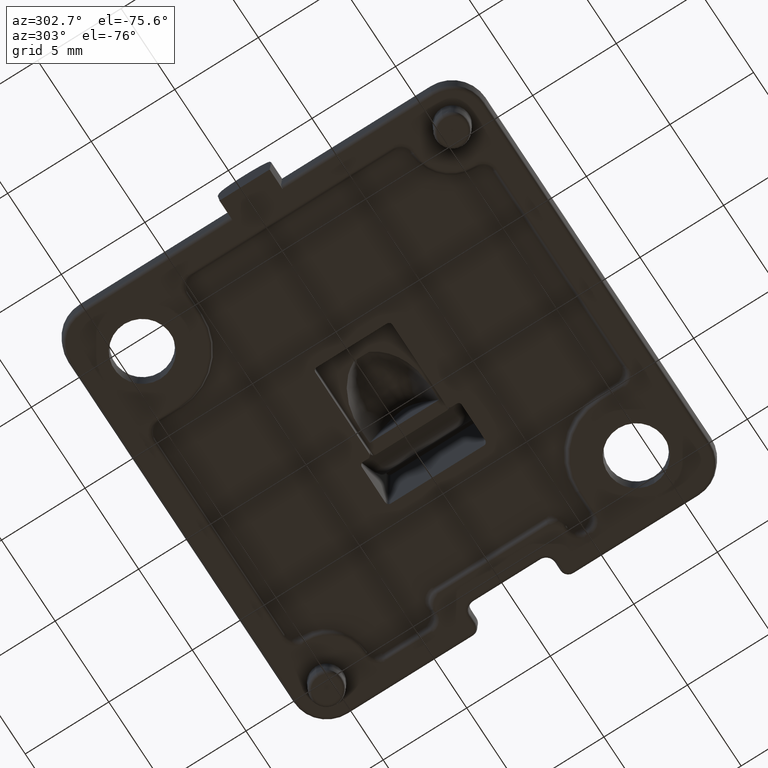
[diagram: clean part render]
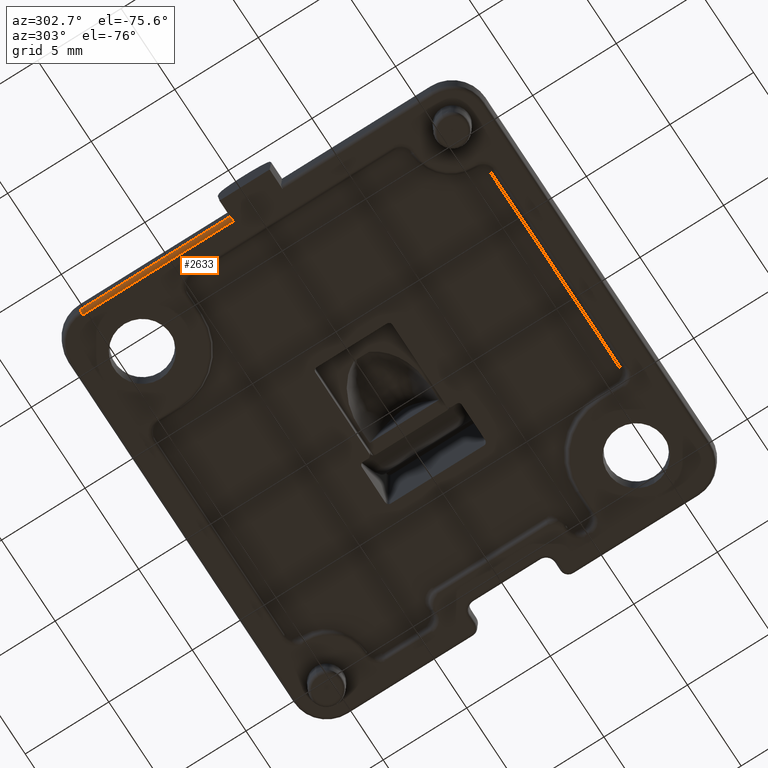
[diagram: same view with one face highlighted and labeled with its STEP entity id]
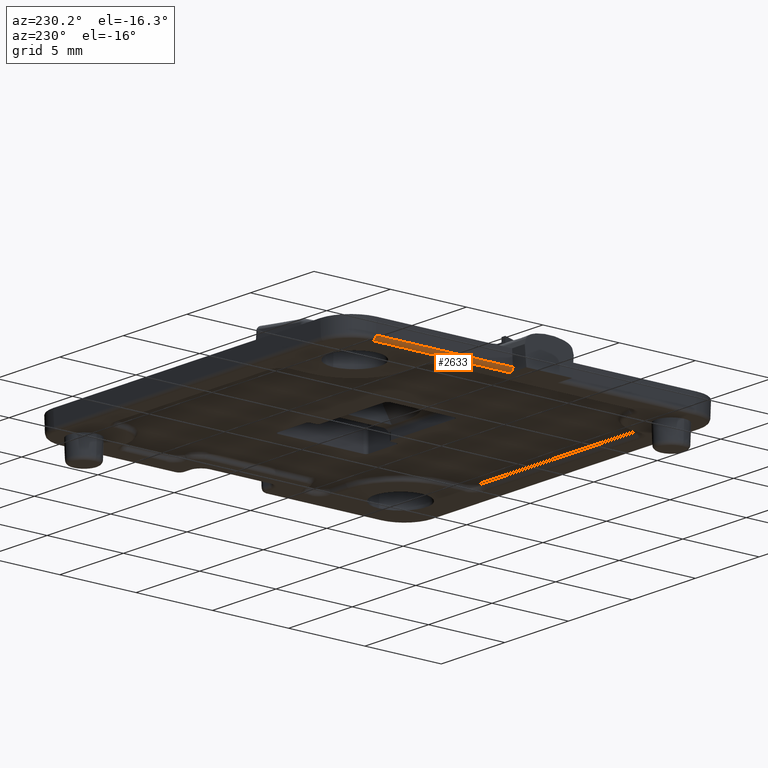
[diagram: same view with one face highlighted and labeled with its STEP entity id]
A machine part, auxiliary view. The second image highlights one B-rep face of the part: STEP entity #2633.
A second angle (auxiliary view) of the same face is appended — the face is thin or edge-on in the first view.
In plain terms, the highlighted cylindrical surface (edge-blend (fillet) strip) has radius 0.25 mm, axis along (-0, 1, 0).
Its self-contained STEP definition (entity closure, byte-faithful):
#91 = DIRECTION ( 'NONE',  ( 8.260587980841940000E-017, -1.000000000000000000, -1.200071625483515100E-033 ) ) ;
#319 = VERTEX_POINT ( 'NONE', #2352 ) ;
#773 = EDGE_CURVE ( 'NONE', #7667, #319, #3754, .T. ) ;
#805 = CIRCLE ( 'NONE', #2545, 0.2500000000000000000 ) ;
#1375 = DIRECTION ( 'NONE',  ( -8.260587980841941200E-017, 1.000000000000000000, 0.0000000000000000000 ) ) ;
#1663 = EDGE_LOOP ( 'NONE', ( #2472, #2549, #5921, #6391 ) ) ;
#1700 = CYLINDRICAL_SURFACE ( 'NONE', #3645, 0.2500000000000002200 ) ;
#2111 = VECTOR ( 'NONE', #4198, 1000.000000000000000 ) ;
#2209 = VERTEX_POINT ( 'NONE', #2726 ) ;
#2352 = CARTESIAN_POINT ( 'NONE',  ( -12.21667288290813500, 10.50000000000000000, 0.0000000000000000000 ) ) ;
#2472 = ORIENTED_EDGE ( 'NONE', *, *, #4617, .F. ) ;
#2515 = DIRECTION ( 'NONE',  ( 0.0000000000000000000, 1.000000000000000000, 0.0000000000000000000 ) ) ;
#2545 = AXIS2_PLACEMENT_3D ( 'NONE', #6262, #2515, #6877 ) ;
#2549 = ORIENTED_EDGE ( 'NONE', *, *, #3310, .F. ) ;
#2633 = ADVANCED_FACE ( 'NONE', ( #7629 ), #1700, .T. ) ;
#2726 = CARTESIAN_POINT ( 'NONE',  ( -12.46652058966291000, 1.521108838300419700, 0.2412751258243746900 ) ) ;
#3061 =( BOUNDED_CURVE ( )  B_SPLINE_CURVE ( 3, ( #5245, #6502, #7118, #3384 ),
 .UNSPECIFIED., .F., .F. ) 
 B_SPLINE_CURVE_WITH_KNOTS ( ( 4, 4 ),
 ( 1.605702911834783000, 3.141592653589785600 ),
 .UNSPECIFIED. ) 
 CURVE ( )  GEOMETRIC_REPRESENTATION_ITEM ( )  RATIONAL_B_SPLINE_CURVE ( ( 1.000000000000000000, 0.8128932002257691600, 0.8128932002257691600, 1.000000000000000000 ) ) 
 REPRESENTATION_ITEM ( '' )  );
#3310 = EDGE_CURVE ( 'NONE', #6607, #2209, #5191, .T. ) ;
#3384 = CARTESIAN_POINT ( 'NONE',  ( -12.21667288290813700, 1.500000000000000000, 0.0000000000000000000 ) ) ;
#3645 = AXIS2_PLACEMENT_3D ( 'NONE', #5125, #1375, #6997 ) ;
#3754 = LINE ( 'NONE', #6088, #2111 ) ;
#4198 = DIRECTION ( 'NONE',  ( -8.260587980841941200E-017, 1.000000000000000000, -0.0000000000000000000 ) ) ;
#4617 = EDGE_CURVE ( 'NONE', #2209, #7667, #3061, .T. ) ;
#4733 = CARTESIAN_POINT ( 'NONE',  ( -12.21667288290813700, 1.500000000000000000, 0.0000000000000000000 ) ) ;
#4982 = VECTOR ( 'NONE', #91, 1000.000000000000000 ) ;
#5125 = CARTESIAN_POINT ( 'NONE',  ( -12.21667288290813500, -1.009169011824286000E-015, 0.2500000000000000000 ) ) ;
#5191 = LINE ( 'NONE', #7508, #4982 ) ;
#5245 = CARTESIAN_POINT ( 'NONE',  ( -12.46652058966291000, 1.521108838300419700, 0.2412751258243746900 ) ) ;
#5921 = ORIENTED_EDGE ( 'NONE', *, *, #6291, .F. ) ;
#6088 = CARTESIAN_POINT ( 'NONE',  ( -12.21667288290813700, 10.49999999999999600, 0.0000000000000000000 ) ) ;
#6262 = CARTESIAN_POINT ( 'NONE',  ( -12.21667288290813700, 10.50000000000000000, 0.2500000000000000000 ) ) ;
#6291 = EDGE_CURVE ( 'NONE', #319, #6607, #805, .T. ) ;
#6391 = ORIENTED_EDGE ( 'NONE', *, *, #773, .F. ) ;
#6495 = CARTESIAN_POINT ( 'NONE',  ( -12.46652058966291000, 10.50000000000000000, 0.2412751258243749100 ) ) ;
#6502 = CARTESIAN_POINT ( 'NONE',  ( -12.46155002536605100, 1.508655847325966600, 0.09893678766057102700 ) ) ;
#6607 = VERTEX_POINT ( 'NONE', #6495 ) ;
#6877 = DIRECTION ( 'NONE',  ( 0.0000000000000000000, 0.0000000000000000000, 1.000000000000000000 ) ) ;
#6997 = DIRECTION ( 'NONE',  ( -1.000000000000000000, -8.260587980841901800E-017, 0.0000000000000000000 ) ) ;
#7118 = CARTESIAN_POINT ( 'NONE',  ( -12.35909798259447200, 1.499999999999994200, 9.039962978567818400E-016 ) ) ;
#7508 = CARTESIAN_POINT ( 'NONE',  ( -12.46652058966291000, 1.499999999999999600, 0.2412751258243747700 ) ) ;
#7629 = FACE_OUTER_BOUND ( 'NONE', #1663, .T. ) ;
#7667 = VERTEX_POINT ( 'NONE', #4733 ) ;